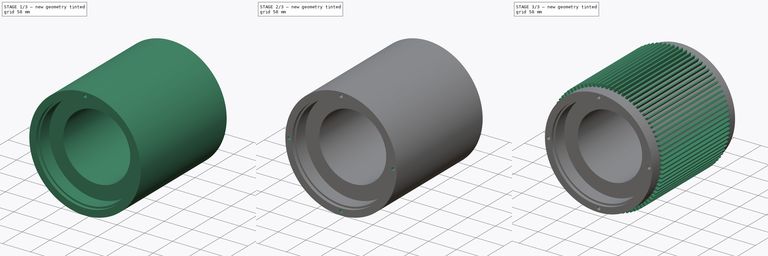
[diagram: build sequence overview — one tinted view per stage of 3, left to right]
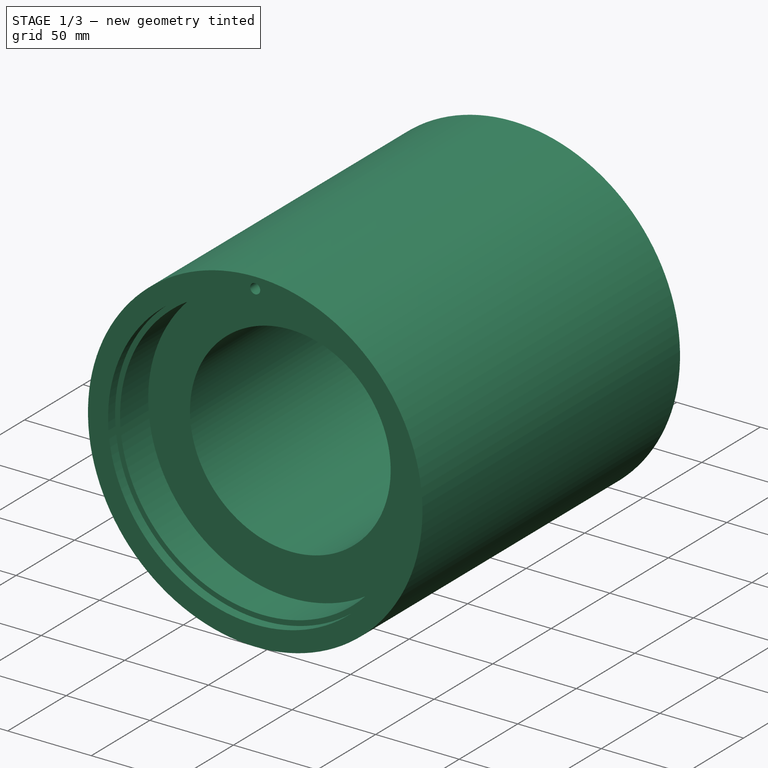
[diagram: stage 1 of 3 — iso view after this stage's code; geometry added in this stage tinted green]
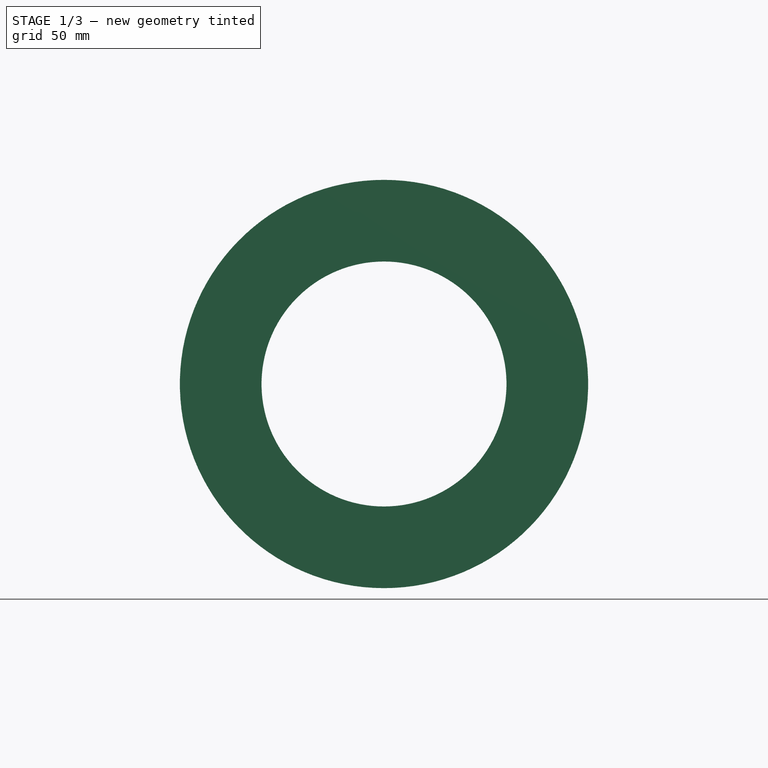
[diagram: stage 1 of 3 — front view after this stage's code; geometry added in this stage tinted green]
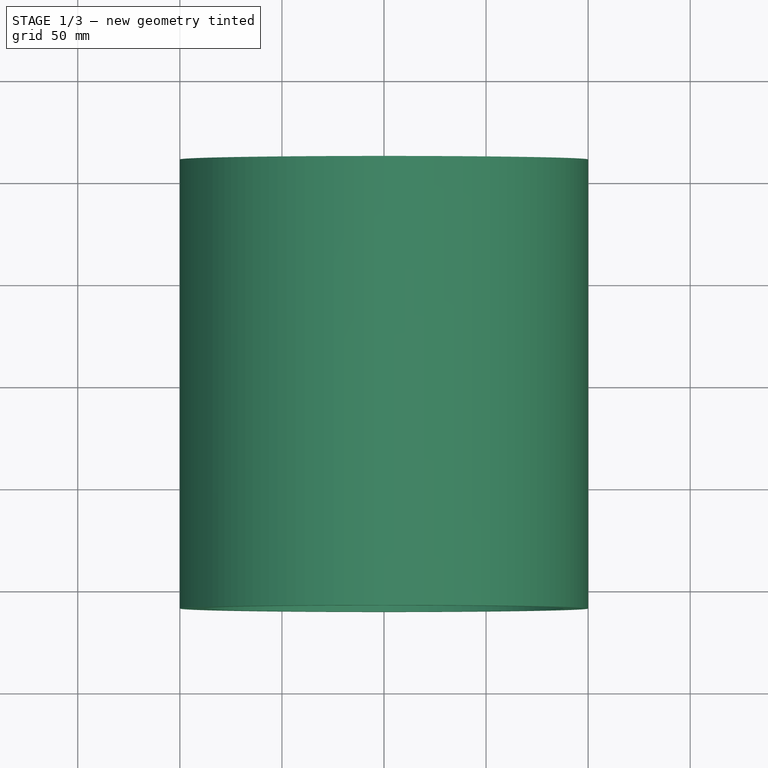
[diagram: stage 1 of 3 — top view after this stage's code; geometry added in this stage tinted green]
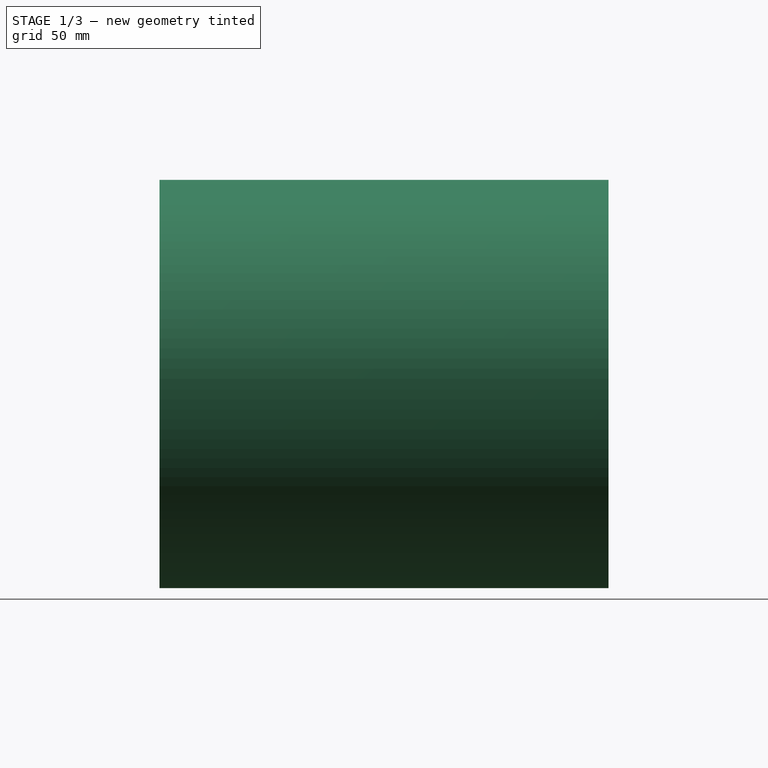
[diagram: stage 1 of 3 — right view after this stage's code; geometry added in this stage tinted green]
FCSTD DOCUMENT  (FreeCAD 0.20R29126 (Git))
Label: electric-motor-main-housing
License: All rights reserved
LicenseURL: http://en.wikipedia.org/wiki/All_rights_reserved
objects: Sketcher::SketchObject×3, PartDesign::PolarPattern×2, PartDesign::Revolution×1, PartDesign::Plane×1, PartDesign::Pocket×1, PartDesign::Mirrored×1, PartDesign::MultiTransform×1, PartDesign::Pad×1, PartDesign::Body×1
note: 15 computed .brp shape members not serialized (recipe doc carries the construction recipe); baked Part::Feature solids carry a one-line shape summary decoded from their .brp

FEATURE [Sketcher::SketchObject] Sketch
  FullyConstrained = true
  MapMode = 5
  Placement = pos=(0,0,0) rot=(0.57735,0.57735,0.57735;2.0944rad)
  Support = -> [YZ_Plane]
  sketch-geometry (12):
    g0: LineSegment StartX=-110 StartY=100 StartZ=0 EndX=110 EndY=100 EndZ=0
    g1: LineSegment StartX=110 StartY=100 StartZ=0 EndX=110 EndY=88 EndZ=0
    g2: LineSegment StartX=110 StartY=88 StartZ=0 EndX=104 EndY=88 EndZ=0
    g3: LineSegment StartX=104 StartY=88 StartZ=0 EndX=104 EndY=85 EndZ=0
    g4: LineSegment StartX=104 StartY=85 StartZ=0 EndX=80 EndY=85 EndZ=0
    g5: LineSegment StartX=80 StartY=85 StartZ=0 EndX=80 EndY=60 EndZ=0
    g6: LineSegment StartX=80 StartY=60 StartZ=0 EndX=-80 EndY=60 EndZ=0
    g7: LineSegment StartX=-80 StartY=60 StartZ=0 EndX=-80 EndY=85 EndZ=0
    g8: LineSegment StartX=-80 StartY=85 StartZ=0 EndX=-104 EndY=85 EndZ=0
    g9: LineSegment StartX=-104 StartY=85 StartZ=0 EndX=-104 EndY=88 EndZ=0
    g10: LineSegment StartX=-104 StartY=88 StartZ=0 EndX=-110 EndY=88 EndZ=0
    g11: LineSegment StartX=-110 StartY=88 StartZ=0 EndX=-110 EndY=100 EndZ=0
  constraints (31):
    c: Coincident(g0,g1)
    c: Coincident(g1,g2)
    c: Coincident(g2,g3)
    c: Vertical(g3)
    c: Coincident(g3,g4)
    c: Coincident(g4,g5)
    c: Vertical(g5)
    c: Coincident(g5,g6)
    c: Horizontal(g6)
    c: Coincident(g6,g7)
    c: Vertical(g7)
    c: Coincident(g7,g8)
    c: Coincident(g8,g9)
    c: Coincident(g9,g10)
    c: Coincident(g10,g11)
    c: Coincident(g11,g0)
    c: Vertical(g11)
    c: Vertical(g9)
    c: Vertical(g1)
    c: Tangent(g10,g2)
    c: Tangent(g4,g8)
    c: Symmetric(g0,g0,g-2)
    c: Symmetric(g9,g2,g-2)
    c: Symmetric(g7,g4,g-2)
    c: DistanceY(g-1,g0) = 100
    c: DistanceY(g11,g11) = 12
    c: DistanceX(g10,g10) = 6
    c: DistanceX(g0,g0) = 220
    c: DistanceX(g6,g6) = 160
    c: DistanceY(g-1,g5) = 60
    c: DistanceY(g3,g3) = 3
FEATURE [PartDesign::Revolution] Revolution
  Angle = 360
  Axis = (1e-16,1,-1e-16)
  Base = (0,0,0)
  Placement = pos=(0,0,0) rot=(0.57735,0.57735,0.57735;2.0944rad)
  Profile = -> Sketch
  ReferenceAxis = -> Y_Axis
FEATURE [PartDesign::Plane] DatumPlane
  AttachmentOffset = pos=(0,0,110) rot=(0,0,1;0rad)
  Length = 60
  MapMode = 5
  Placement = pos=(0,-110,2.44e-14) rot=(1,0,0;1.5708rad)
  ResizeMode = 0
  Support = -> [XZ_Plane]
  Width = 60
FEATURE [Sketcher::SketchObject] Sketch001
  FullyConstrained = true
  MapMode = 5
  Placement = pos=(0,-110,2.44e-14) rot=(1,0,0;1.5708rad)
  Support = -> [DatumPlane]
  sketch-geometry (1):
    g0: Circle CenterX=0 CenterY=93.5 CenterZ=0 NormalX=0 NormalY=0 NormalZ=1 AngleXU=0 Radius=3
  constraints (3):
    c: PointOnObject(g0,g-2)
    c: DistanceY(g-1,g0) = 93.5
    c: Radius(g0) = 3
FEATURE [PartDesign::Pocket] Pocket
  BaseFeature = -> Revolution
  Direction = (0,1,-2e-16)
  Length = 14
  Length2 = 5
  Placement = pos=(0,0,0) rot=(0.57735,0.57735,0.57735;2.0944rad)
  Profile = -> Sketch001
  ReferenceAxis = -> Sketch001 [N_Axis]
  Type = 0
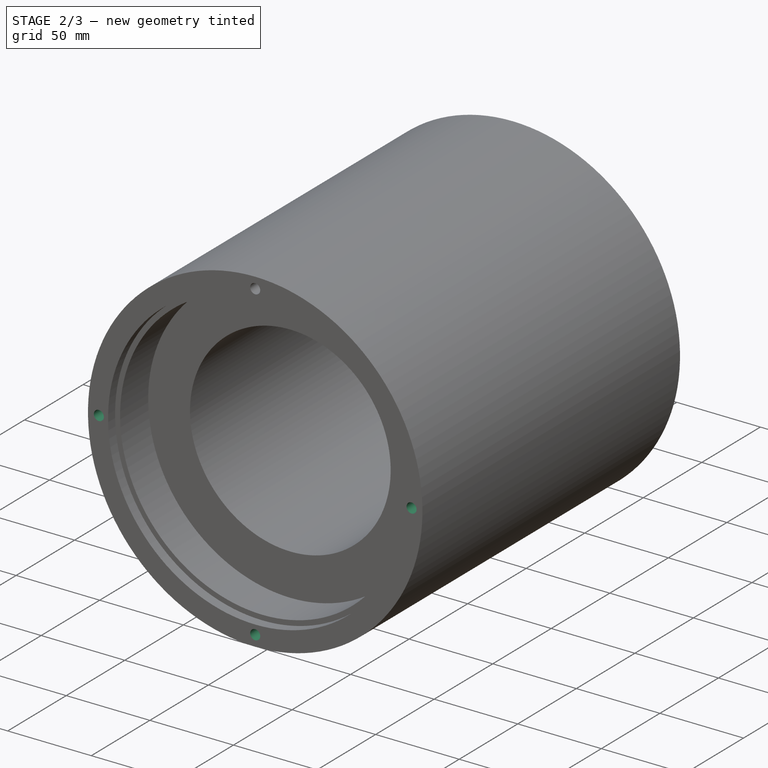
[diagram: stage 2 of 3 — iso view after this stage's code; geometry added in this stage tinted green]
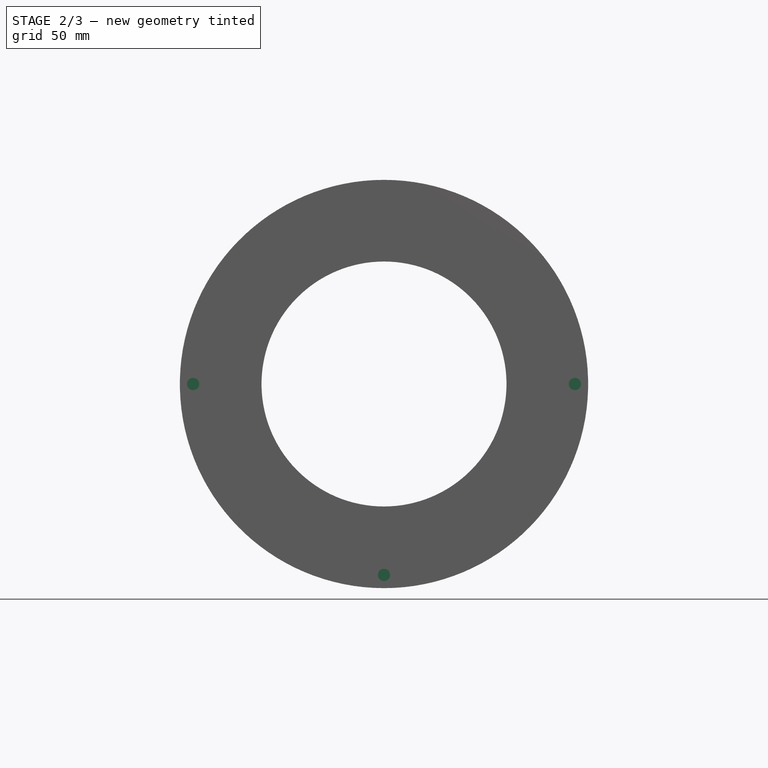
[diagram: stage 2 of 3 — front view after this stage's code; geometry added in this stage tinted green]
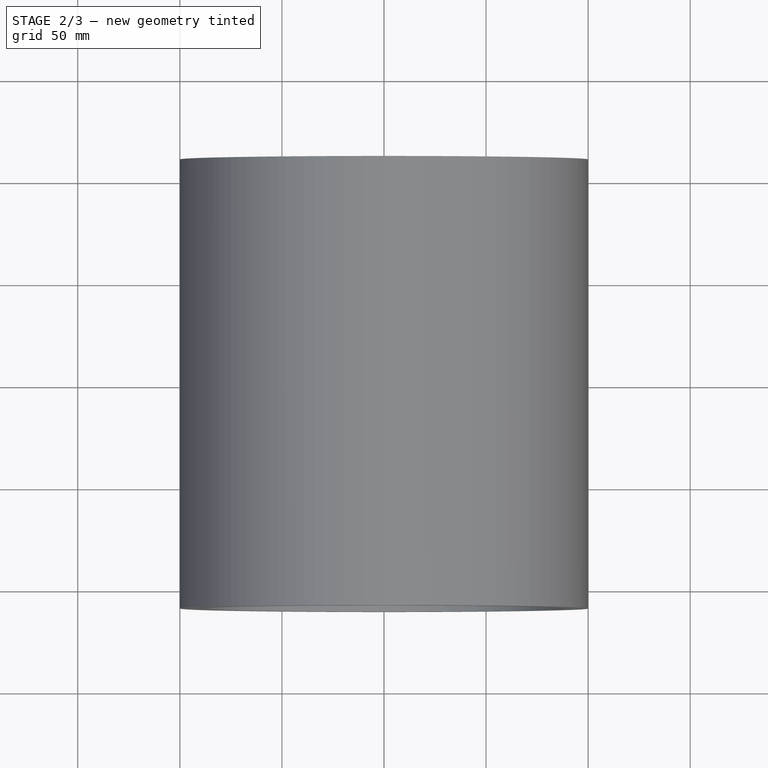
[diagram: stage 2 of 3 — top view after this stage's code; geometry added in this stage tinted green]
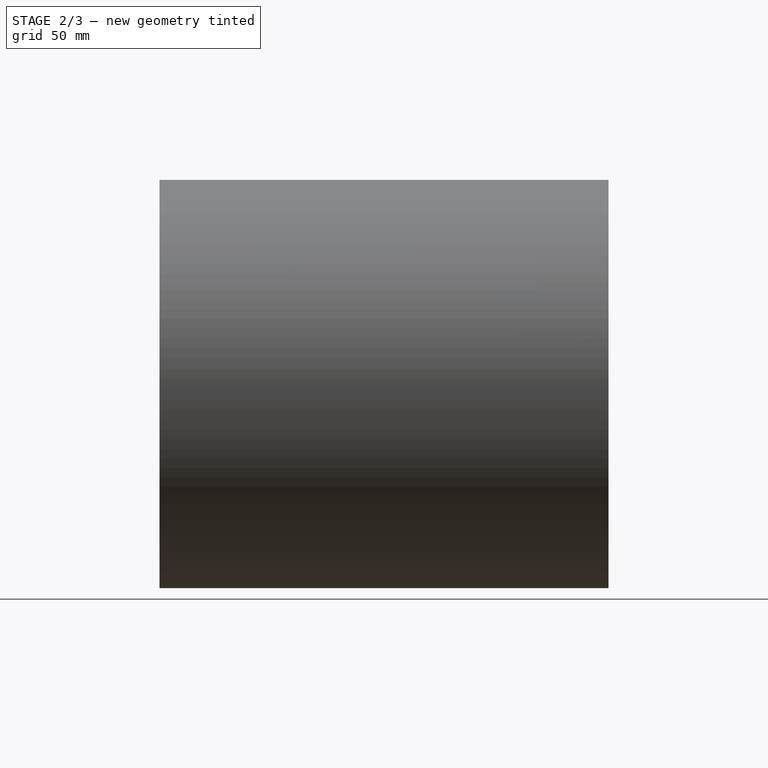
[diagram: stage 2 of 3 — right view after this stage's code; geometry added in this stage tinted green]
FEATURE [PartDesign::PolarPattern] PolarPattern
  Angle = 360
  Axis = -> Y_Axis
  Occurrences = 4
  Placement = pos=(0,0,0) rot=(0.57735,0.57735,0.57735;2.0944rad)
FEATURE [PartDesign::Mirrored] Mirrored
  MirrorPlane = -> XZ_Plane
  Placement = pos=(0,0,0) rot=(0.57735,0.57735,0.57735;2.0944rad)
FEATURE [PartDesign::MultiTransform] MultiTransform
  BaseFeature = -> Pocket
  Originals = -> [Pocket]
  Placement = pos=(0,0,0) rot=(0.57735,0.57735,0.57735;2.0944rad)
  Transformations = -> [PolarPattern,Mirrored]
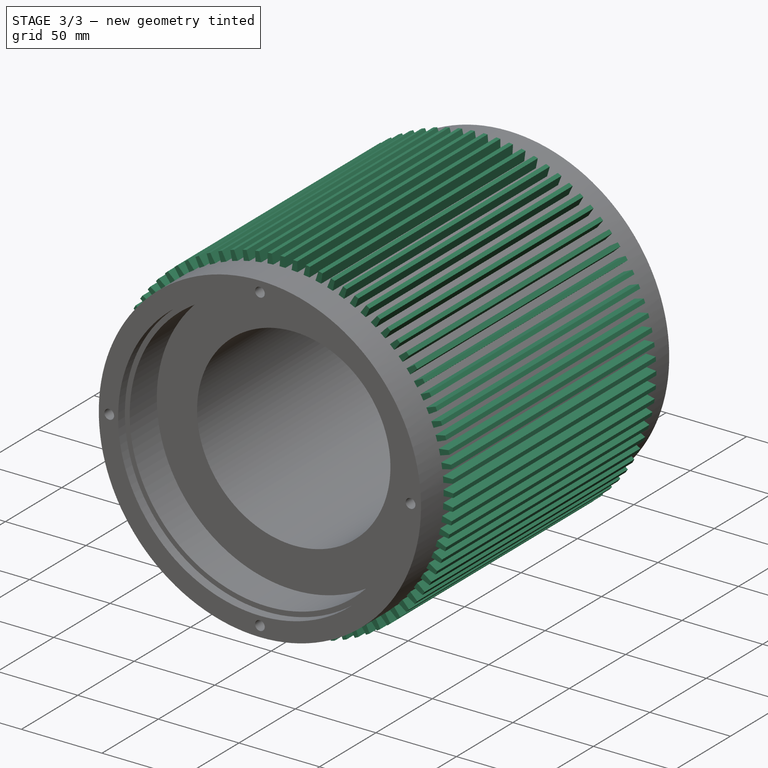
[diagram: stage 3 of 3 — iso view after this stage's code; geometry added in this stage tinted green]
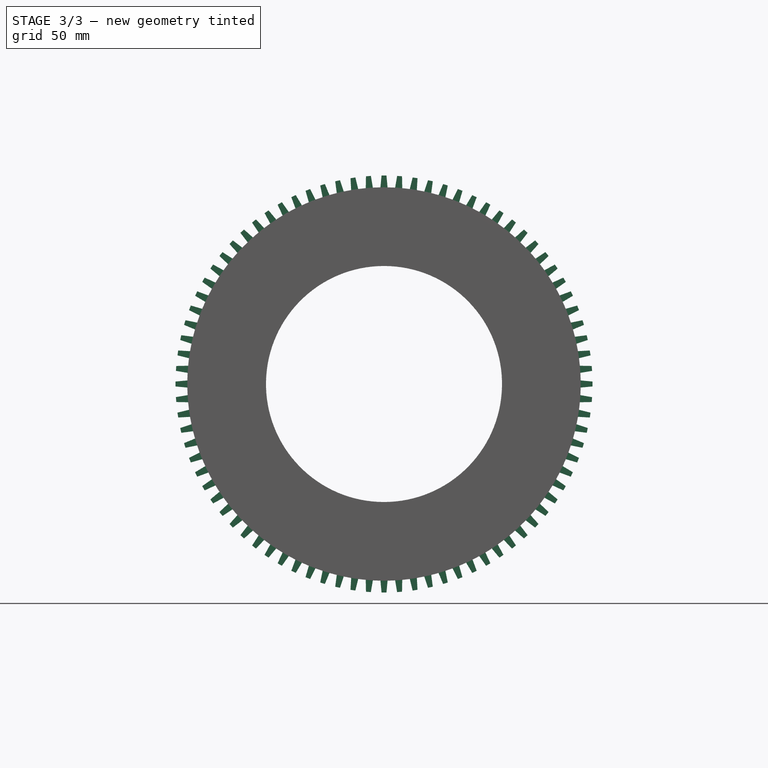
[diagram: stage 3 of 3 — front view after this stage's code; geometry added in this stage tinted green]
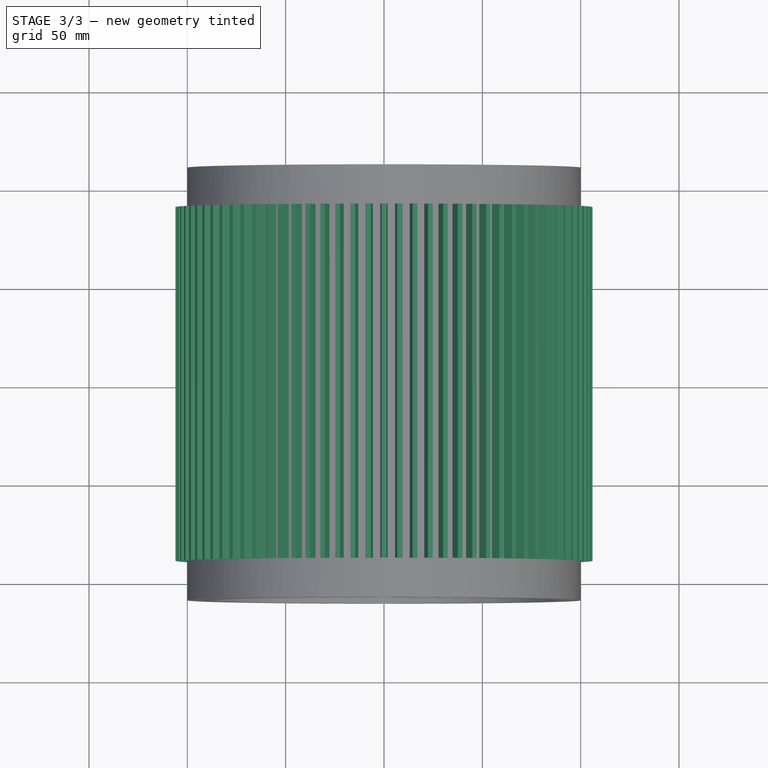
[diagram: stage 3 of 3 — top view after this stage's code; geometry added in this stage tinted green]
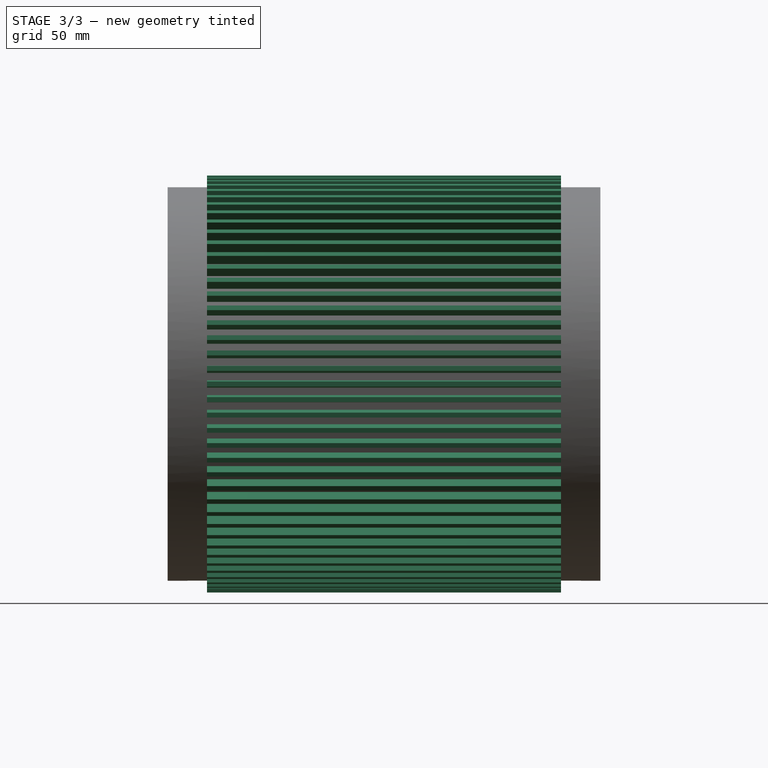
[diagram: stage 3 of 3 — right view after this stage's code; geometry added in this stage tinted green]
FEATURE [Sketcher::SketchObject] Sketch002
  FullyConstrained = true
  MapMode = 5
  Placement = pos=(0,0,0) rot=(1,0,0;1.5708rad)
  Support = -> [XZ_Plane]
  sketch-geometry (4):
    g0: LineSegment StartX=-2 StartY=98 StartZ=0 EndX=-1.25 EndY=106 EndZ=0
    g1: LineSegment StartX=-1.25 StartY=106 StartZ=0 EndX=1.25 EndY=106 EndZ=0
    g2: LineSegment StartX=1.25 StartY=106 StartZ=0 EndX=2 EndY=98 EndZ=0
    g3: LineSegment StartX=2 StartY=98 StartZ=0 EndX=-2 EndY=98 EndZ=0
  constraints (10):
    c: Coincident(g0,g1)
    c: Coincident(g1,g2)
    c: Coincident(g2,g3)
    c: Coincident(g3,g0)
    c: Symmetric(g0,g1,g-2)
    c: Symmetric(g0,g2,g-2)
    c: DistanceY(g2,g1) = 8
    c: DistanceY(g-1,g2) = 98
    c: DistanceX(g0,g2) = 4
    c: DistanceX(g0,g1) = 2.5
FEATURE [PartDesign::Pad] Pad
  BaseFeature = -> MultiTransform
  Direction = (0,-1,2e-16)
  Length = 180
  Length2 = 10
  Midplane = true
  Placement = pos=(0,0,0) rot=(0.57735,0.57735,0.57735;2.0944rad)
  Profile = -> Sketch002
  ReferenceAxis = -> Sketch002 [N_Axis]
  Type = 0
FEATURE [PartDesign::PolarPattern] PolarPattern001
  Angle = 360
  Axis = -> Y_Axis
  BaseFeature = -> Pad
  Occurrences = 84
  Originals = -> [Pad]
  Placement = pos=(0,0,0) rot=(0.57735,0.57735,0.57735;2.0944rad)
FEATURE [PartDesign::Body] Body
  Group = -> [Sketch,Revolution,DatumPlane,Sketch001,Pocket,MultiTransform,PolarPattern,Mirrored,Sketch002,Pad,PolarPattern001]
  Origin = -> Origin
  Tip = -> PolarPattern001
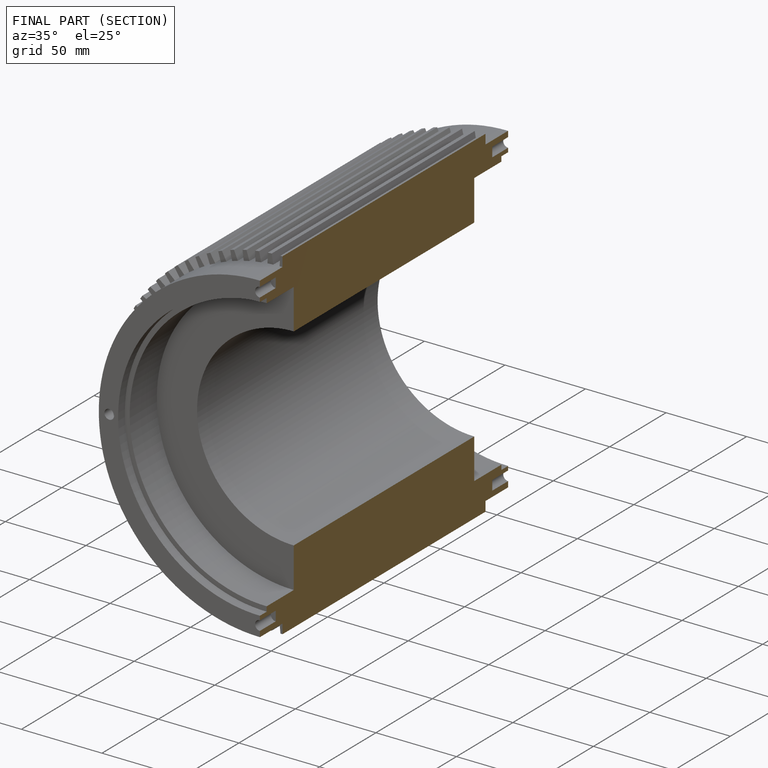
[diagram: finished part — half-section view (interior)]
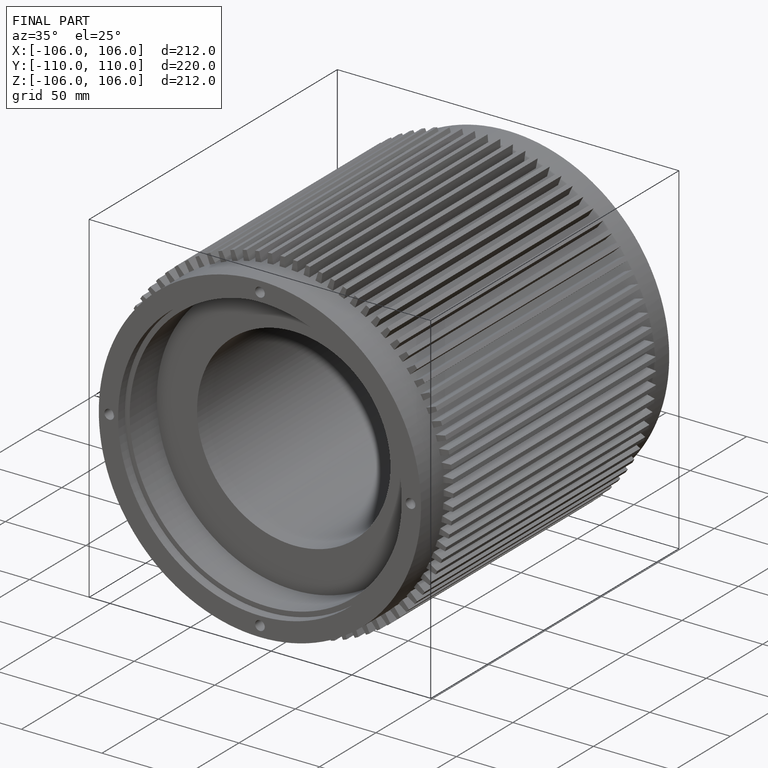
[diagram: finished part — iso view with bounding-box wireframe]
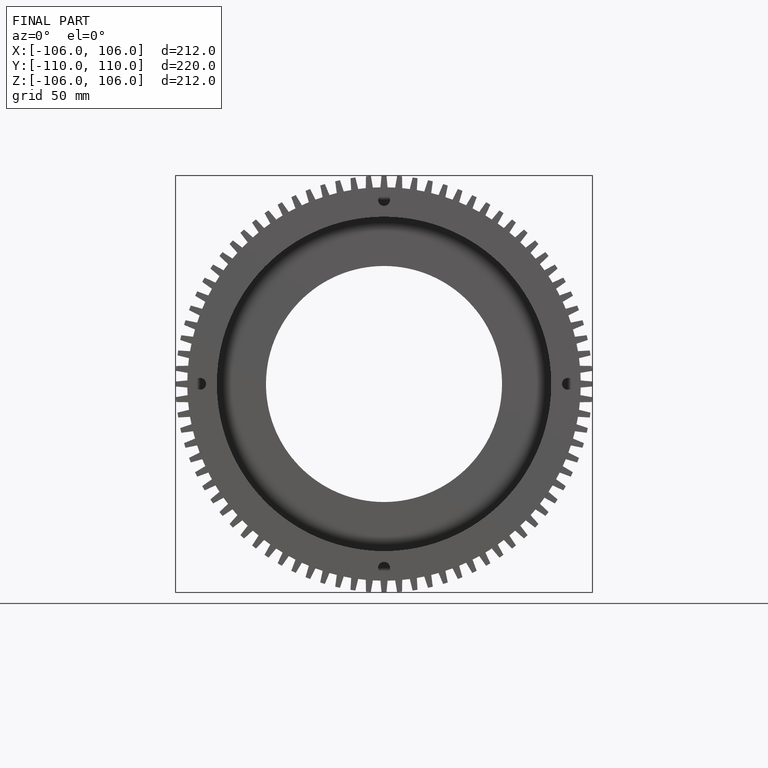
[diagram: finished part — front view with bounding-box wireframe]
